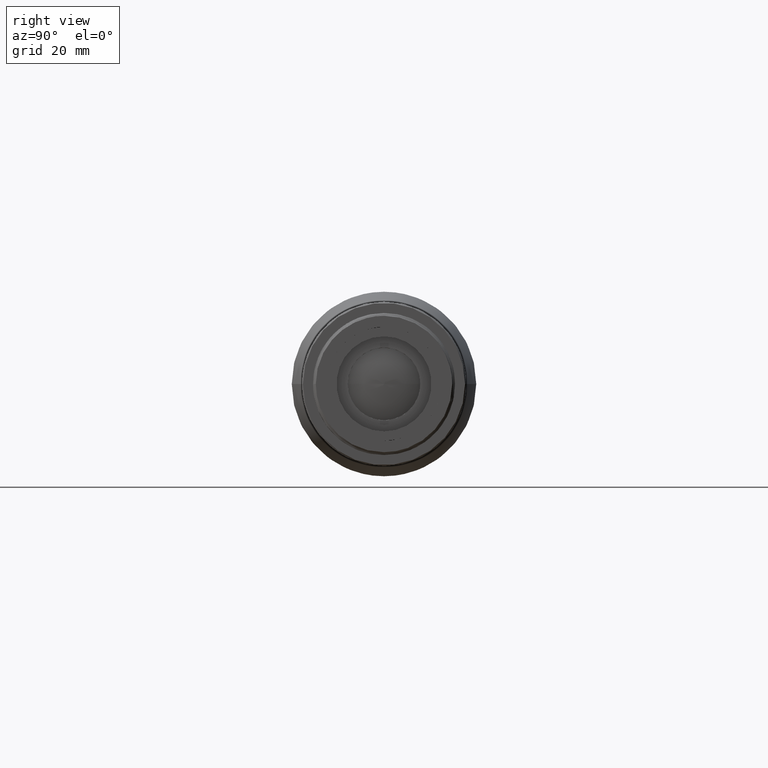
[diagram: clean part render]
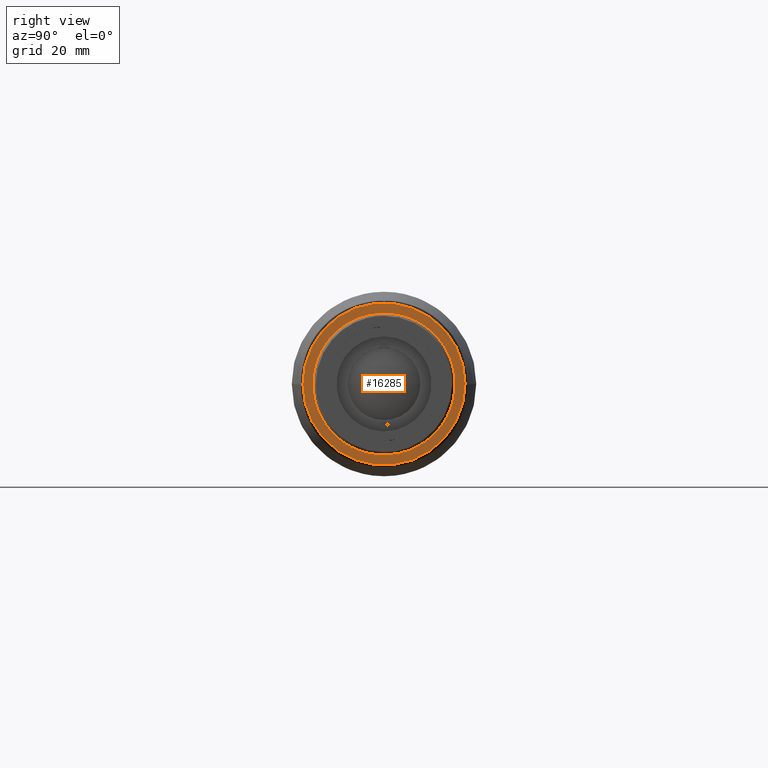
[diagram: same view with one face highlighted and labeled with its STEP entity id]
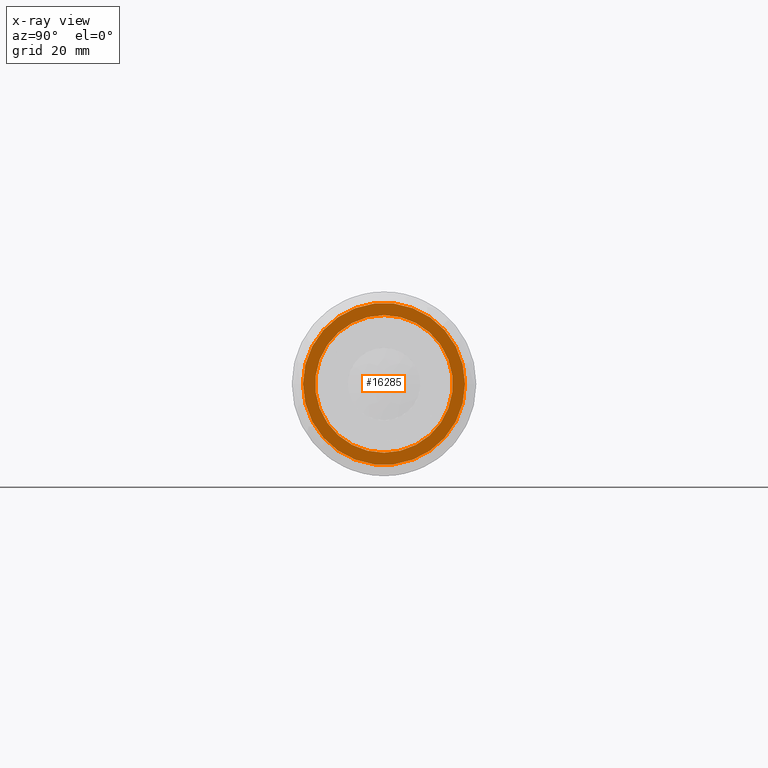
[diagram: x-ray of the same camera — body ghosted, the highlighted face saturated]
A machine part, right view. The second image highlights one B-rep face of the part: STEP entity #16285.
The next image is the same camera in x-ray: the body ghosted, the highlighted face saturated — about 0% of this face is hidden behind the body in this view.
In plain terms, the highlighted planar face has unit normal (1, 0, 0).
Its self-contained STEP definition (entity closure, byte-faithful):
#6 = ORIENTED_EDGE ( 'NONE', *, *, #872, .T. ) ;
#872 = EDGE_CURVE ( 'NONE', #18169, #8188, #6003, .T. ) ;
#1098 = CIRCLE ( 'NONE', #13257, 14.49999846109905910 ) ;
#1316 = ORIENTED_EDGE ( 'NONE', *, *, #11935, .F. ) ;
#2563 = AXIS2_PLACEMENT_3D ( 'NONE', #7748, #13529, #15046 ) ;
#2802 = CARTESIAN_POINT ( 'NONE',  ( 61.91799971779906997, 14.49999846109919943, 8.678943453798238986E-14 ) ) ;
#3060 = DIRECTION ( 'NONE',  ( -1.000000000000000000, 0.000000000000000000, -0.000000000000000000 ) ) ;
#3831 = CARTESIAN_POINT ( 'NONE',  ( 61.91799999999999926, 15.07999839953999732, 15.07999839953999732 ) ) ;
#4158 = AXIS2_PLACEMENT_3D ( 'NONE', #13410, #3060, #11816 ) ;
#4409 = EDGE_LOOP ( 'NONE', ( #1316, #13289 ) ) ;
#4501 = CARTESIAN_POINT ( 'NONE',  ( 61.91799999999999926, 1.506315562951244216E-15, 12.29999999999999893 ) ) ;
#4679 = AXIS2_PLACEMENT_3D ( 'NONE', #9691, #15542, #14214 ) ;
#6003 = CIRCLE ( 'NONE', #4158, 12.29999999999999893 ) ;
#7097 = AXIS2_PLACEMENT_3D ( 'NONE', #3831, #15425, #18117 ) ;
#7195 = DIRECTION ( 'NONE',  ( -1.000000000000000000, 2.392722289772326005E-16, 0.000000000000000000 ) ) ;
#7748 = CARTESIAN_POINT ( 'NONE',  ( 61.91799999999999926, 0.000000000000000000, 0.000000000000000000 ) ) ;
#8188 = VERTEX_POINT ( 'NONE', #4501 ) ;
#8281 = ORIENTED_EDGE ( 'NONE', *, *, #13395, .T. ) ;
#8875 = VERTEX_POINT ( 'NONE', #2802 ) ;
#9247 = VERTEX_POINT ( 'NONE', #16130 ) ;
#9550 = PLANE ( 'NONE',  #7097 ) ;
#9657 = FACE_OUTER_BOUND ( 'NONE', #4409, .T. ) ;
#9691 = CARTESIAN_POINT ( 'NONE',  ( 61.91799971779906997, 1.412203687322999695E-13, 8.500145032286354763E-14 ) ) ;
#11697 = CIRCLE ( 'NONE', #2563, 12.29999999999999893 ) ;
#11816 = DIRECTION ( 'NONE',  ( 0.000000000000000000, 0.000000000000000000, -1.000000000000000000 ) ) ;
#11935 = EDGE_CURVE ( 'NONE', #9247, #8875, #1098, .T. ) ;
#12634 = EDGE_CURVE ( 'NONE', #8875, #9247, #16210, .T. ) ;
#12650 = CARTESIAN_POINT ( 'NONE',  ( 61.91799999999999926, 0.000000000000000000, -12.29999999999999893 ) ) ;
#12880 = CARTESIAN_POINT ( 'NONE',  ( 61.91799971779906997, 1.412203687322999695E-13, 8.500145032286354763E-14 ) ) ;
#13257 = AXIS2_PLACEMENT_3D ( 'NONE', #12880, #7195, #17265 ) ;
#13289 = ORIENTED_EDGE ( 'NONE', *, *, #12634, .F. ) ;
#13395 = EDGE_CURVE ( 'NONE', #8188, #18169, #11697, .T. ) ;
#13410 = CARTESIAN_POINT ( 'NONE',  ( 61.91799999999999926, 0.000000000000000000, 0.000000000000000000 ) ) ;
#13529 = DIRECTION ( 'NONE',  ( -1.000000000000000000, 0.000000000000000000, -0.000000000000000000 ) ) ;
#13589 = EDGE_LOOP ( 'NONE', ( #6, #8281 ) ) ;
#14214 = DIRECTION ( 'NONE',  ( 0.000000000000000000, -1.000000000000000000, 0.000000000000000000 ) ) ;
#15046 = DIRECTION ( 'NONE',  ( 0.000000000000000000, 0.000000000000000000, -1.000000000000000000 ) ) ;
#15425 = DIRECTION ( 'NONE',  ( 1.000000000000000000, 0.000000000000000000, 0.000000000000000000 ) ) ;
#15542 = DIRECTION ( 'NONE',  ( -1.000000000000000000, 2.392722289772326005E-16, 0.000000000000000000 ) ) ;
#16130 = CARTESIAN_POINT ( 'NONE',  ( 61.91799971779906997, -14.49999846109891699, 8.500145032286354763E-14 ) ) ;
#16210 = CIRCLE ( 'NONE', #4679, 14.49999846109905910 ) ;
#16285 = ADVANCED_FACE ( 'NONE', ( #16854, #9657 ), #9550, .T. ) ;
#16854 = FACE_BOUND ( 'NONE', #13589, .T. ) ;
#17265 = DIRECTION ( 'NONE',  ( 0.000000000000000000, -1.000000000000000000, 0.000000000000000000 ) ) ;
#18117 = DIRECTION ( 'NONE',  ( 0.000000000000000000, -1.000000000000000000, 0.000000000000000000 ) ) ;
#18169 = VERTEX_POINT ( 'NONE', #12650 ) ;